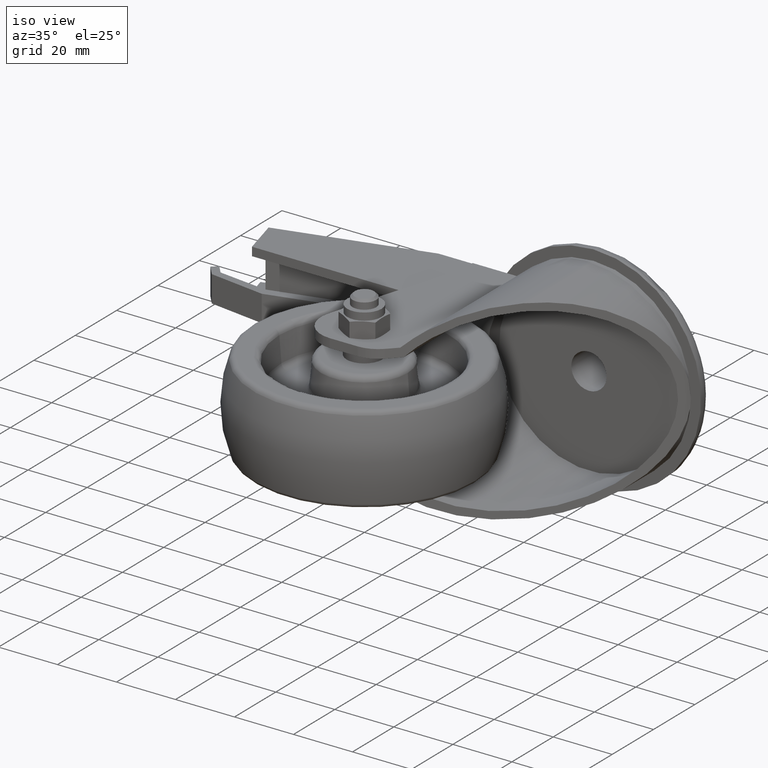
[diagram: clean part render]
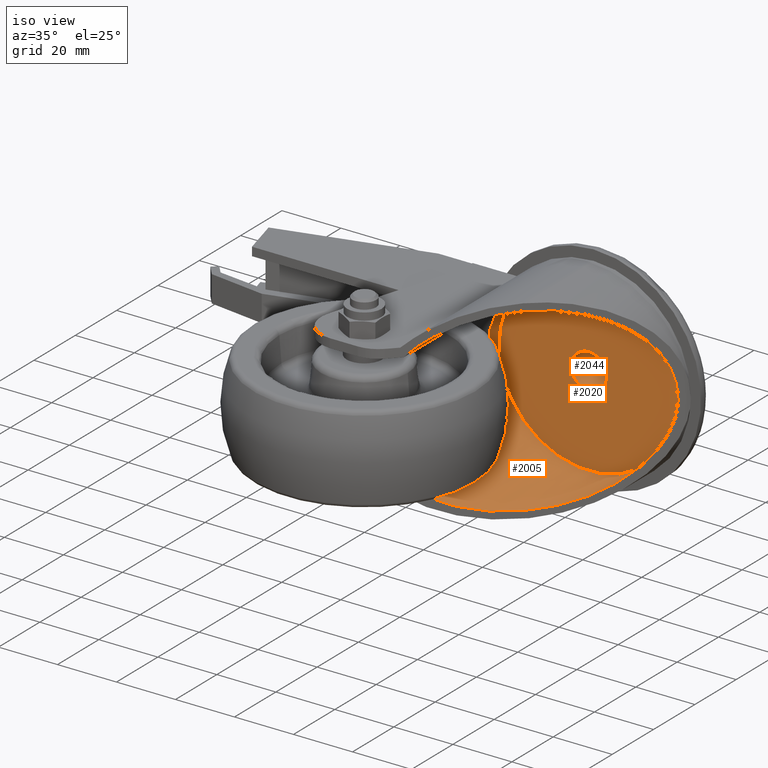
[diagram: same view with one multi-face feature highlighted, each face labeled with its STEP entity id]
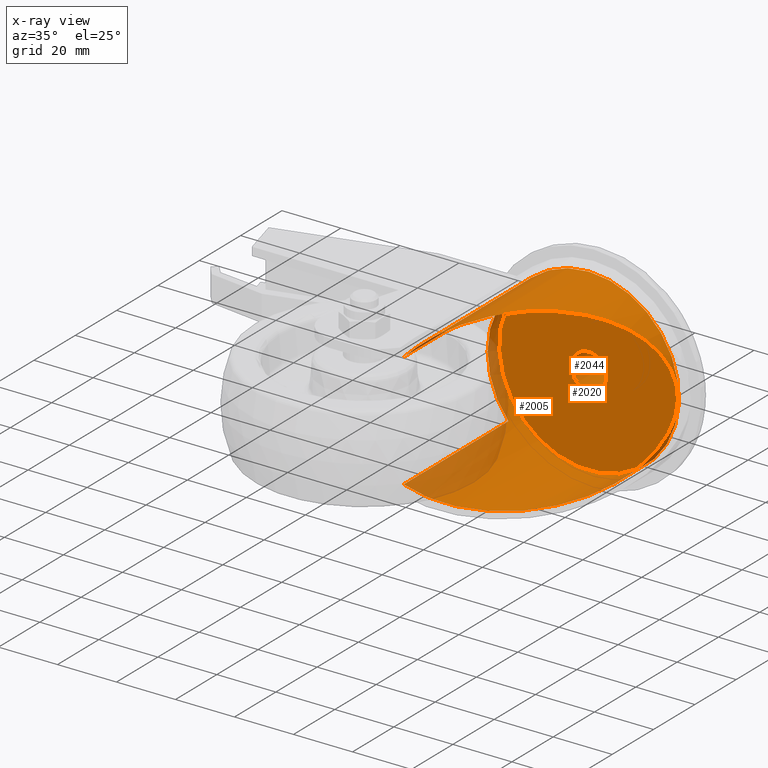
[diagram: x-ray of the same camera — body ghosted, the whole feature saturated]
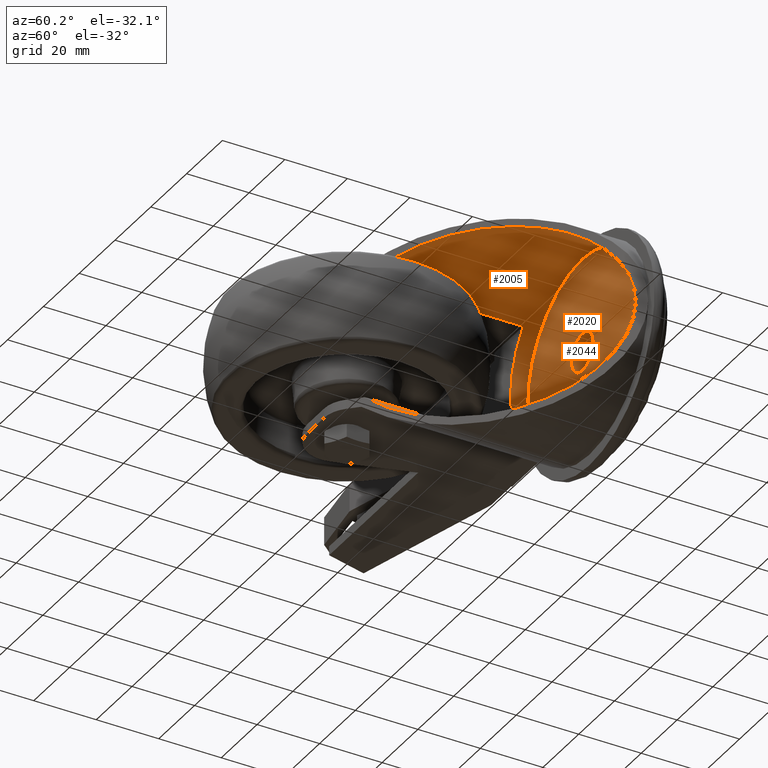
[diagram: same view with one multi-face feature highlighted, each face labeled with its STEP entity id]
A machine part, iso view. The highlighted faces form ONE feature: a stepped (counterbored) hole: 2 coaxial cylindrical walls of radii 6 -> 30.5 mm joined by 1 annular planar shoulder face(s). The faces share edges in the B-rep.
The next image is the same camera in x-ray: the body ghosted and the whole hole feature saturated, so the bore chain is visible through the body.
A second angle (auxiliary view) of the same feature is appended — it is thin or edge-on in the first view.
Their STEP definitions:
[1] entity #2005 (Cylinder):
#249=FACE_OUTER_BOUND('',#380,.T.);
#380=EDGE_LOOP('',(#1468,#1469,#1470,#1471,#1472,#1473,#1474,#1475));
#513=CIRCLE('',#2238,30.5);
#524=CIRCLE('',#2263,30.5);
#619=ELLIPSE('',#2252,43.8715844141241,30.5);
#620=ELLIPSE('',#2253,43.8715844141241,30.5);
#652=LINE('',#3177,#789);
#657=LINE('',#3196,#794);
#671=LINE('',#3241,#808);
#789=VECTOR('',#2528,1000.);
#794=VECTOR('',#2545,1000.);
#808=VECTOR('',#2595,30.5);
#918=VERTEX_POINT('',#3158);
#921=VERTEX_POINT('',#3163);
#926=VERTEX_POINT('',#3176);
#934=VERTEX_POINT('',#3194);
#942=VERTEX_POINT('',#3217);
#947=VERTEX_POINT('',#3239);
#1108=EDGE_CURVE('',#918,#921,#513,.T.);
#1114=EDGE_CURVE('',#926,#918,#652,.F.);
#1124=EDGE_CURVE('',#921,#934,#657,.T.);
#1135=EDGE_CURVE('',#926,#942,#619,.F.);
#1136=EDGE_CURVE('',#942,#934,#620,.F.);
#1147=EDGE_CURVE('',#947,#947,#524,.T.);
#1148=EDGE_CURVE('',#947,#942,#671,.T.);
#1468=ORIENTED_EDGE('',*,*,#1147,.F.);
#1469=ORIENTED_EDGE('',*,*,#1148,.T.);
#1470=ORIENTED_EDGE('',*,*,#1135,.F.);
#1471=ORIENTED_EDGE('',*,*,#1114,.T.);
#1472=ORIENTED_EDGE('',*,*,#1108,.T.);
#1473=ORIENTED_EDGE('',*,*,#1124,.T.);
#1474=ORIENTED_EDGE('',*,*,#1136,.F.);
#1475=ORIENTED_EDGE('',*,*,#1148,.F.);
#1975=CYLINDRICAL_SURFACE('',#2262,30.5);
#2005=ADVANCED_FACE('',(#249),#1975,.F.);
#2238=AXIS2_PLACEMENT_3D('',#3165,#2519,#2520);
#2252=AXIS2_PLACEMENT_3D('',#3218,#2565,#2566);
#2253=AXIS2_PLACEMENT_3D('',#3219,#2567,#2568);
#2262=AXIS2_PLACEMENT_3D('',#3238,#2591,#2592);
#2263=AXIS2_PLACEMENT_3D('',#3240,#2593,#2594);
#2519=DIRECTION('center_axis',(0.,-1.,0.));
#2520=DIRECTION('ref_axis',(0.,0.,-1.));
#2528=DIRECTION('',(0.,-1.,0.));
#2545=DIRECTION('',(0.,-1.,0.));
#2565=DIRECTION('center_axis',(0.718805899606343,-0.695210816005559,0.));
#2566=DIRECTION('ref_axis',(-0.695210816005559,-0.718805899606343,0.));
#2567=DIRECTION('center_axis',(0.718805899606343,-0.695210816005559,0.));
#2568=DIRECTION('ref_axis',(-0.695210816005559,-0.718805899606343,0.));
#2591=DIRECTION('center_axis',(0.,-1.,0.));
#2592=DIRECTION('ref_axis',(0.,0.,-1.));
#2593=DIRECTION('center_axis',(0.,-1.,0.));
#2594=DIRECTION('ref_axis',(0.,0.,-1.));
#2595=DIRECTION('',(0.,-1.,0.));
#3158=CARTESIAN_POINT('',(15.5479212008828,47.5,19.5));
#3163=CARTESIAN_POINT('',(15.5479212008828,47.5,-19.5));
#3165=CARTESIAN_POINT('Origin',(39.,47.5,0.));
#3176=CARTESIAN_POINT('',(15.5479212008828,-3.16803218769697,19.5));
#3177=CARTESIAN_POINT('',(15.5479212008828,-10.,19.5));
#3194=CARTESIAN_POINT('',(15.5479212008828,-3.16803218769697,-19.5));
#3196=CARTESIAN_POINT('',(15.5479212008828,-10.,-19.5));
#3217=CARTESIAN_POINT('',(39.,21.0799976339556,30.5));
#3218=CARTESIAN_POINT('Origin',(39.,21.0799976339556,0.));
#3219=CARTESIAN_POINT('Origin',(39.,21.0799976339556,0.));
#3238=CARTESIAN_POINT('Origin',(39.,-10.,0.));
#3239=CARTESIAN_POINT('',(39.,53.,30.5));
#3240=CARTESIAN_POINT('Origin',(39.,53.,0.));
#3241=CARTESIAN_POINT('',(39.,-10.,30.5));
[2] entity #2044 (Cylinder):
#288=FACE_OUTER_BOUND('',#426,.T.);
#426=EDGE_LOOP('',(#1664,#1665,#1666,#1667));
#530=CIRCLE('',#2274,6.);
#540=CIRCLE('',#2294,6.);
#733=LINE('',#3402,#870);
#870=VECTOR('',#2767,6.);
#955=VERTEX_POINT('',#3266);
#965=VERTEX_POINT('',#3302);
#1161=EDGE_CURVE('',#955,#955,#530,.T.);
#1177=EDGE_CURVE('',#965,#965,#540,.F.);
#1226=EDGE_CURVE('',#955,#965,#733,.T.);
#1664=ORIENTED_EDGE('',*,*,#1161,.F.);
#1665=ORIENTED_EDGE('',*,*,#1226,.T.);
#1666=ORIENTED_EDGE('',*,*,#1177,.F.);
#1667=ORIENTED_EDGE('',*,*,#1226,.F.);
#1982=CYLINDRICAL_SURFACE('',#2318,6.);
#2044=ADVANCED_FACE('',(#288),#1982,.F.);
#2274=AXIS2_PLACEMENT_3D('',#3267,#2623,#2624);
#2294=AXIS2_PLACEMENT_3D('',#3303,#2669,#2670);
#2318=AXIS2_PLACEMENT_3D('',#3401,#2765,#2766);
#2623=DIRECTION('center_axis',(0.,-1.,0.));
#2624=DIRECTION('ref_axis',(0.,0.,-1.));
#2669=DIRECTION('center_axis',(0.,-1.,0.));
#2670=DIRECTION('ref_axis',(0.,0.,-1.));
#2765=DIRECTION('center_axis',(0.,-1.,0.));
#2766=DIRECTION('ref_axis',(0.,0.,-1.));
#2767=DIRECTION('',(0.,-1.,0.));
#3266=CARTESIAN_POINT('',(39.,67.,6.));
#3267=CARTESIAN_POINT('Origin',(39.,67.,0.));
#3302=CARTESIAN_POINT('',(39.,53.,6.));
#3303=CARTESIAN_POINT('Origin',(39.,53.,0.));
#3401=CARTESIAN_POINT('Origin',(39.,47.,0.));
#3402=CARTESIAN_POINT('',(39.,47.,6.));
[3] entity #2020 (Plane):
#157=FACE_BOUND('',#402,.T.);
#187=PLANE('',#2293);
#264=FACE_OUTER_BOUND('',#401,.T.);
#401=EDGE_LOOP('',(#1542));
#402=EDGE_LOOP('',(#1543));
#524=CIRCLE('',#2263,30.5);
#540=CIRCLE('',#2294,6.);
#947=VERTEX_POINT('',#3239);
#965=VERTEX_POINT('',#3302);
#1147=EDGE_CURVE('',#947,#947,#524,.T.);
#1177=EDGE_CURVE('',#965,#965,#540,.F.);
#1542=ORIENTED_EDGE('',*,*,#1147,.T.);
#1543=ORIENTED_EDGE('',*,*,#1177,.T.);
#2020=ADVANCED_FACE('',(#264,#157),#187,.T.);
#2263=AXIS2_PLACEMENT_3D('',#3240,#2593,#2594);
#2293=AXIS2_PLACEMENT_3D('',#3301,#2667,#2668);
#2294=AXIS2_PLACEMENT_3D('',#3303,#2669,#2670);
#2593=DIRECTION('center_axis',(0.,-1.,0.));
#2594=DIRECTION('ref_axis',(0.,0.,-1.));
#2667=DIRECTION('center_axis',(0.,-1.,0.));
#2668=DIRECTION('ref_axis',(0.,0.,-1.));
#2669=DIRECTION('center_axis',(0.,-1.,0.));
#2670=DIRECTION('ref_axis',(0.,0.,-1.));
#3239=CARTESIAN_POINT('',(39.,53.,30.5));
#3240=CARTESIAN_POINT('Origin',(39.,53.,0.));
#3301=CARTESIAN_POINT('Origin',(39.,53.,0.));
#3302=CARTESIAN_POINT('',(39.,53.,6.));
#3303=CARTESIAN_POINT('Origin',(39.,53.,0.));